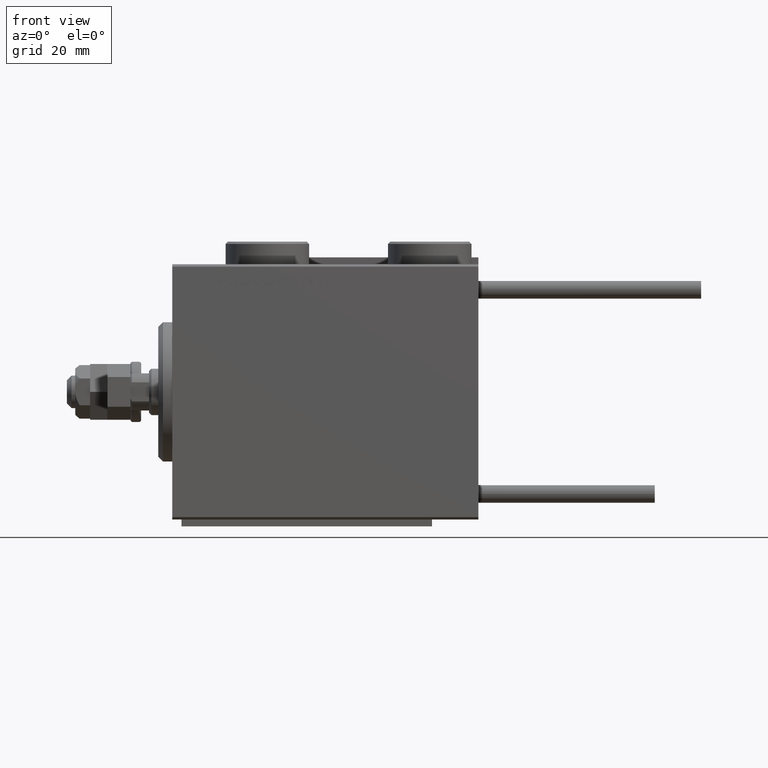
[diagram: clean part render]
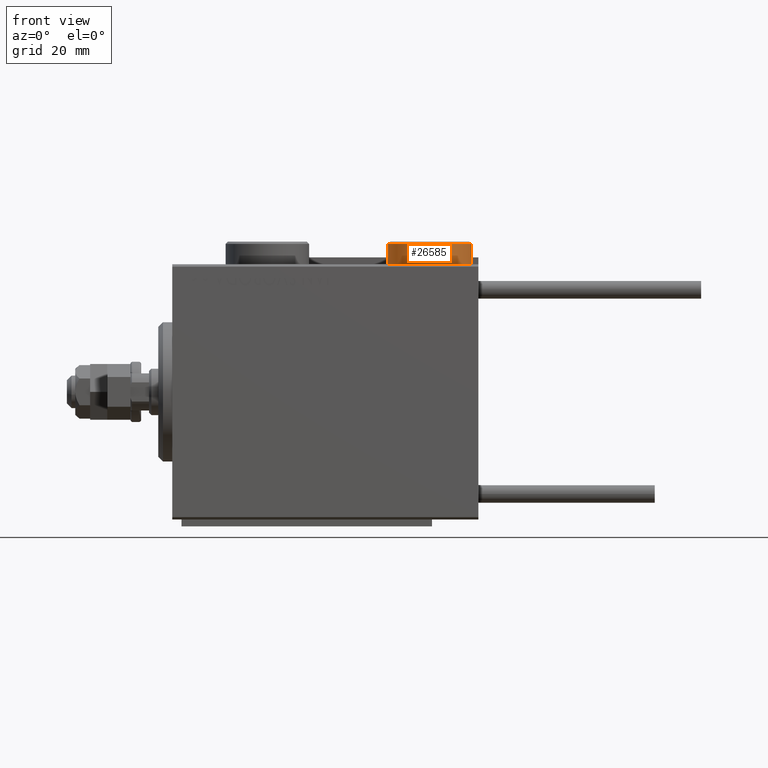
[diagram: same view with one face highlighted and labeled with its STEP entity id]
A machine part, front view. The second image highlights one B-rep face of the part: STEP entity #26585.
In plain terms, the highlighted cylindrical surface (partial cylindrical patch) has radius 9 mm, axis along (-0, -0, -1).
Its self-contained STEP definition (entity closure, byte-faithful):
#3415 = VECTOR ( 'NONE', #33621, 1000.000000000000000 ) ;
#5428 = CARTESIAN_POINT ( 'NONE',  ( 0.000000000000000000, 0.000000000000000000, 5.000000000000000000 ) ) ;
#7702 = DIRECTION ( 'NONE',  ( 1.000000000000000000, 0.000000000000000000, 0.000000000000000000 ) ) ;
#8644 = ORIENTED_EDGE ( 'NONE', *, *, #44610, .T. ) ;
#9192 = LINE ( 'NONE', #29106, #3415 ) ;
#10395 = FACE_OUTER_BOUND ( 'NONE', #28677, .T. ) ;
#12704 = VERTEX_POINT ( 'NONE', #22519 ) ;
#13892 = VERTEX_POINT ( 'NONE', #30705 ) ;
#13925 = ORIENTED_EDGE ( 'NONE', *, *, #17720, .T. ) ;
#14898 = CYLINDRICAL_SURFACE ( 'NONE', #26737, 9.000000000000001776 ) ;
#15387 = AXIS2_PLACEMENT_3D ( 'NONE', #26390, #29582, #37297 ) ;
#17720 = EDGE_CURVE ( 'NONE', #36765, #12704, #37358, .T. ) ;
#18628 = DIRECTION ( 'NONE',  ( -1.000000000000000000, 0.000000000000000000, 0.000000000000000000 ) ) ;
#21325 = VECTOR ( 'NONE', #43851, 1000.000000000000000 ) ;
#22519 = CARTESIAN_POINT ( 'NONE',  ( -9.000000000000001776, 0.000000000000000000, 4.500000000000006217 ) ) ;
#23300 = CARTESIAN_POINT ( 'NONE',  ( 9.000000000000001776, 1.102182119232617911E-15, 0.000000000000000000 ) ) ;
#23409 = EDGE_CURVE ( 'NONE', #36765, #46432, #51548, .T. ) ;
#24678 = CARTESIAN_POINT ( 'NONE',  ( 0.000000000000000000, 0.000000000000000000, 4.500000000000006217 ) ) ;
#26390 = CARTESIAN_POINT ( 'NONE',  ( 0.000000000000000000, 0.000000000000000000, 0.000000000000000000 ) ) ;
#26585 = ADVANCED_FACE ( 'NONE', ( #10395 ), #14898, .T. ) ;
#26737 = AXIS2_PLACEMENT_3D ( 'NONE', #5428, #35088, #18628 ) ;
#28677 = EDGE_LOOP ( 'NONE', ( #50577, #13925, #8644, #50569 ) ) ;
#29106 = CARTESIAN_POINT ( 'NONE',  ( -9.000000000000001776, 0.000000000000000000, 5.000000000000000000 ) ) ;
#29582 = DIRECTION ( 'NONE',  ( 0.000000000000000000, 0.000000000000000000, 1.000000000000000000 ) ) ;
#30705 = CARTESIAN_POINT ( 'NONE',  ( -9.000000000000001776, 0.000000000000000000, 0.000000000000000000 ) ) ;
#32160 = CARTESIAN_POINT ( 'NONE',  ( 9.000000000000001776, 1.102182119232617911E-15, 5.000000000000000000 ) ) ;
#33621 = DIRECTION ( 'NONE',  ( -0.000000000000000000, -0.000000000000000000, -1.000000000000000000 ) ) ;
#35088 = DIRECTION ( 'NONE',  ( -0.000000000000000000, -0.000000000000000000, -1.000000000000000000 ) ) ;
#36765 = VERTEX_POINT ( 'NONE', #48772 ) ;
#37297 = DIRECTION ( 'NONE',  ( 1.000000000000000000, 0.000000000000000000, 0.000000000000000000 ) ) ;
#37358 = CIRCLE ( 'NONE', #39888, 9.000000000000001776 ) ;
#39888 = AXIS2_PLACEMENT_3D ( 'NONE', #24678, #44587, #7702 ) ;
#42513 = CIRCLE ( 'NONE', #15387, 9.000000000000001776 ) ;
#43851 = DIRECTION ( 'NONE',  ( -0.000000000000000000, -0.000000000000000000, -1.000000000000000000 ) ) ;
#44587 = DIRECTION ( 'NONE',  ( 0.000000000000000000, 0.000000000000000000, -1.000000000000000000 ) ) ;
#44610 = EDGE_CURVE ( 'NONE', #12704, #13892, #9192, .T. ) ;
#46432 = VERTEX_POINT ( 'NONE', #23300 ) ;
#47974 = EDGE_CURVE ( 'NONE', #13892, #46432, #42513, .T. ) ;
#48772 = CARTESIAN_POINT ( 'NONE',  ( 9.000000000000001776, 1.102182119232617911E-15, 4.500000000000006217 ) ) ;
#50569 = ORIENTED_EDGE ( 'NONE', *, *, #47974, .T. ) ;
#50577 = ORIENTED_EDGE ( 'NONE', *, *, #23409, .F. ) ;
#51548 = LINE ( 'NONE', #32160, #21325 ) ;